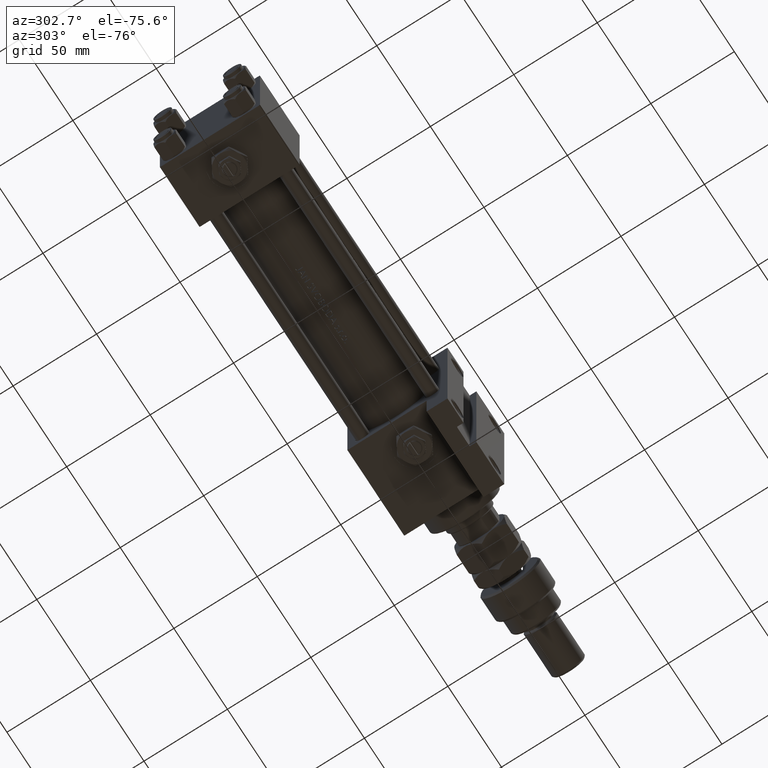
[diagram: clean part render]
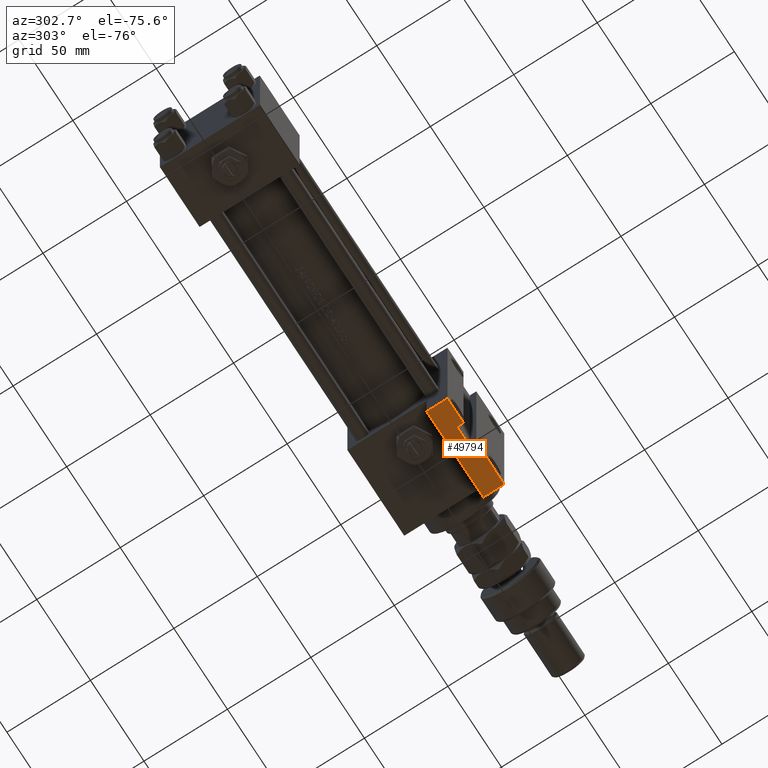
[diagram: same view with one face highlighted and labeled with its STEP entity id]
A machine part, auxiliary view. The second image highlights one B-rep face of the part: STEP entity #49794.
In plain terms, the highlighted planar face has unit normal (0, 0, -1).
Its self-contained STEP definition (entity closure, byte-faithful):
#26 = VECTOR ( 'NONE', #30476, 1000.000000000000000 ) ;
#758 = CARTESIAN_POINT ( 'NONE',  ( 228.0000000000000284, 51.49999999999996447, -17.49999999999999645 ) ) ;
#1026 = DIRECTION ( 'NONE',  ( 1.000000000000000000, -3.927675794664467405E-16, 0.000000000000000000 ) ) ;
#1715 = ORIENTED_EDGE ( 'NONE', *, *, #17947, .F. ) ;
#2662 = EDGE_CURVE ( 'NONE', #10583, #3641, #46955, .T. ) ;
#2849 = CARTESIAN_POINT ( 'NONE',  ( 228.0000000000000284, 51.49999999999996447, -29.99999999999999645 ) ) ;
#3183 = LINE ( 'NONE', #31948, #23126 ) ;
#3641 = VERTEX_POINT ( 'NONE', #28171 ) ;
#3979 = ORIENTED_EDGE ( 'NONE', *, *, #44334, .F. ) ;
#4375 = VECTOR ( 'NONE', #1026, 1000.000000000000000 ) ;
#4886 = VERTEX_POINT ( 'NONE', #2849 ) ;
#5035 = CARTESIAN_POINT ( 'NONE',  ( 175.0000000000000284, 51.49999999999998579, -29.99999999999999645 ) ) ;
#5667 = CARTESIAN_POINT ( 'NONE',  ( 190.0000000000000568, 51.49999999999998579, -25.99999999999999645 ) ) ;
#5975 = ORIENTED_EDGE ( 'NONE', *, *, #48491, .F. ) ;
#8625 = EDGE_CURVE ( 'NONE', #43899, #4886, #3183, .T. ) ;
#10583 = VERTEX_POINT ( 'NONE', #49986 ) ;
#11851 = EDGE_CURVE ( 'NONE', #19379, #34287, #28481, .T. ) ;
#12804 = ORIENTED_EDGE ( 'NONE', *, *, #24990, .T. ) ;
#13509 = CARTESIAN_POINT ( 'NONE',  ( 175.0000000000000284, 51.49999999999998579, -29.99999999999999645 ) ) ;
#13851 = VERTEX_POINT ( 'NONE', #39094 ) ;
#14130 = DIRECTION ( 'NONE',  ( 0.000000000000000000, 0.000000000000000000, -1.000000000000000000 ) ) ;
#15527 = DIRECTION ( 'NONE',  ( -1.000000000000000000, 3.927675794664467405E-16, 0.000000000000000000 ) ) ;
#15732 = CARTESIAN_POINT ( 'NONE',  ( 202.0000000000000000, 51.49999999999998579, -25.99999999999999645 ) ) ;
#15735 = CARTESIAN_POINT ( 'NONE',  ( 190.0000000000000568, 51.49999999999998579, -25.99999999999999645 ) ) ;
#17947 = EDGE_CURVE ( 'NONE', #13851, #4886, #26009, .T. ) ;
#17994 = ORIENTED_EDGE ( 'NONE', *, *, #2662, .F. ) ;
#18541 = CARTESIAN_POINT ( 'NONE',  ( 202.0000000000000000, 51.49999999999998579, -25.99999999999999645 ) ) ;
#19040 = VECTOR ( 'NONE', #42737, 1000.000000000000000 ) ;
#19379 = VERTEX_POINT ( 'NONE', #5667 ) ;
#20333 = DIRECTION ( 'NONE',  ( 1.000000000000000000, -3.927675794664467405E-16, 0.000000000000000000 ) ) ;
#21464 = VECTOR ( 'NONE', #44762, 1000.000000000000000 ) ;
#23089 = CARTESIAN_POINT ( 'NONE',  ( 175.0000000000000284, 51.49999999999998579, -17.49999999999999645 ) ) ;
#23126 = VECTOR ( 'NONE', #23813, 1000.000000000000000 ) ;
#23594 = AXIS2_PLACEMENT_3D ( 'NONE', #27748, #32077, #15527 ) ;
#23663 = CARTESIAN_POINT ( 'NONE',  ( 190.0000000000000568, 51.49999999999998579, -25.99999999999999645 ) ) ;
#23813 = DIRECTION ( 'NONE',  ( 0.000000000000000000, 0.000000000000000000, -1.000000000000000000 ) ) ;
#24487 = PLANE ( 'NONE',  #23594 ) ;
#24990 = EDGE_CURVE ( 'NONE', #10583, #43899, #53408, .T. ) ;
#25003 = VERTEX_POINT ( 'NONE', #15732 ) ;
#26009 = LINE ( 'NONE', #13509, #4375 ) ;
#26808 = ORIENTED_EDGE ( 'NONE', *, *, #45523, .F. ) ;
#27748 = CARTESIAN_POINT ( 'NONE',  ( 175.0000000000000284, 51.49999999999998579, -17.49999999999999645 ) ) ;
#28171 = CARTESIAN_POINT ( 'NONE',  ( 175.0000000000000284, 51.49999999999998579, -29.99999999999999645 ) ) ;
#28481 = LINE ( 'NONE', #15735, #21464 ) ;
#30476 = DIRECTION ( 'NONE',  ( -0.000000000000000000, -0.000000000000000000, -1.000000000000000000 ) ) ;
#30528 = LINE ( 'NONE', #5035, #19040 ) ;
#31249 = LINE ( 'NONE', #23663, #38254 ) ;
#31948 = CARTESIAN_POINT ( 'NONE',  ( 228.0000000000000284, 51.49999999999996447, -17.49999999999999645 ) ) ;
#32077 = DIRECTION ( 'NONE',  ( 3.927675794664467405E-16, 1.000000000000000000, 0.000000000000000000 ) ) ;
#32559 = CARTESIAN_POINT ( 'NONE',  ( 175.0000000000000284, 51.49999999999998579, -17.49999999999999645 ) ) ;
#32623 = FACE_OUTER_BOUND ( 'NONE', #49137, .T. ) ;
#34287 = VERTEX_POINT ( 'NONE', #46597 ) ;
#35064 = DIRECTION ( 'NONE',  ( 1.000000000000000000, 0.000000000000000000, 0.000000000000000000 ) ) ;
#36878 = ORIENTED_EDGE ( 'NONE', *, *, #11851, .T. ) ;
#38254 = VECTOR ( 'NONE', #35064, 1000.000000000000000 ) ;
#39094 = CARTESIAN_POINT ( 'NONE',  ( 202.0000000000000000, 51.49999999999998579, -29.99999999999999645 ) ) ;
#40151 = VECTOR ( 'NONE', #14130, 1000.000000000000000 ) ;
#42737 = DIRECTION ( 'NONE',  ( 1.000000000000000000, -3.927675794664467405E-16, 0.000000000000000000 ) ) ;
#43899 = VERTEX_POINT ( 'NONE', #758 ) ;
#44334 = EDGE_CURVE ( 'NONE', #3641, #34287, #30528, .T. ) ;
#44762 = DIRECTION ( 'NONE',  ( -0.000000000000000000, -0.000000000000000000, -1.000000000000000000 ) ) ;
#45523 = EDGE_CURVE ( 'NONE', #25003, #13851, #51075, .T. ) ;
#46597 = CARTESIAN_POINT ( 'NONE',  ( 190.0000000000000568, 51.49999999999998579, -29.99999999999999645 ) ) ;
#46919 = ORIENTED_EDGE ( 'NONE', *, *, #8625, .T. ) ;
#46955 = LINE ( 'NONE', #23089, #40151 ) ;
#47991 = VECTOR ( 'NONE', #20333, 1000.000000000000000 ) ;
#48491 = EDGE_CURVE ( 'NONE', #19379, #25003, #31249, .T. ) ;
#49137 = EDGE_LOOP ( 'NONE', ( #26808, #5975, #36878, #3979, #17994, #12804, #46919, #1715 ) ) ;
#49794 = ADVANCED_FACE ( 'NONE', ( #32623 ), #24487, .T. ) ;
#49986 = CARTESIAN_POINT ( 'NONE',  ( 175.0000000000000284, 51.49999999999998579, -17.49999999999999645 ) ) ;
#51075 = LINE ( 'NONE', #18541, #26 ) ;
#53408 = LINE ( 'NONE', #32559, #47991 ) ;